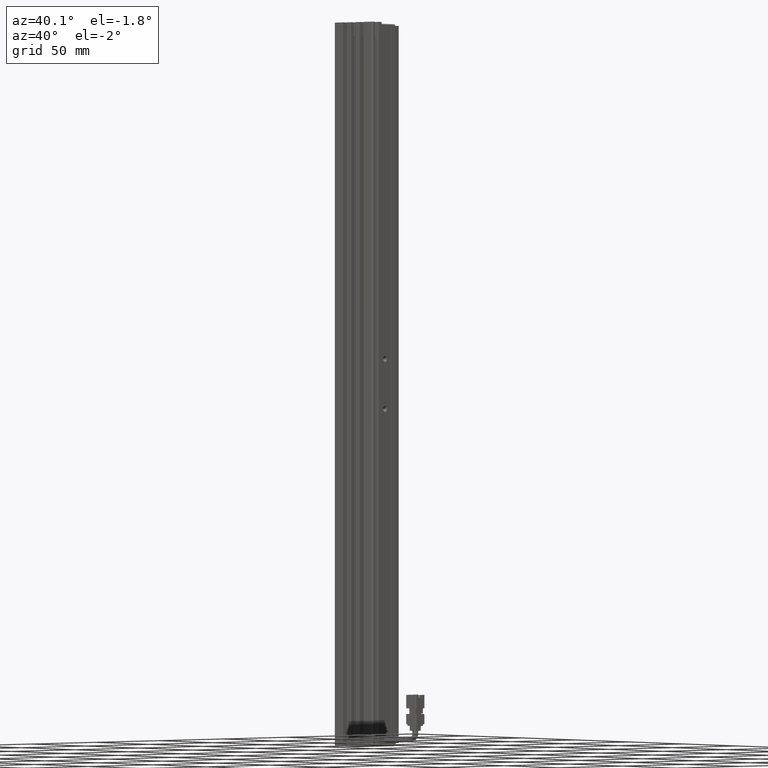
[diagram: clean part render]
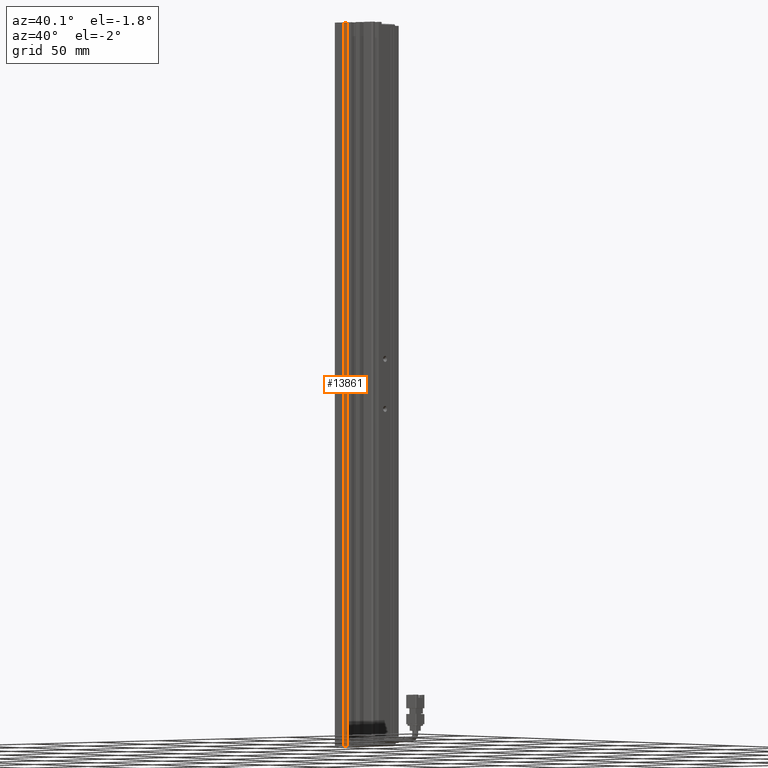
[diagram: same view with one face highlighted and labeled with its STEP entity id]
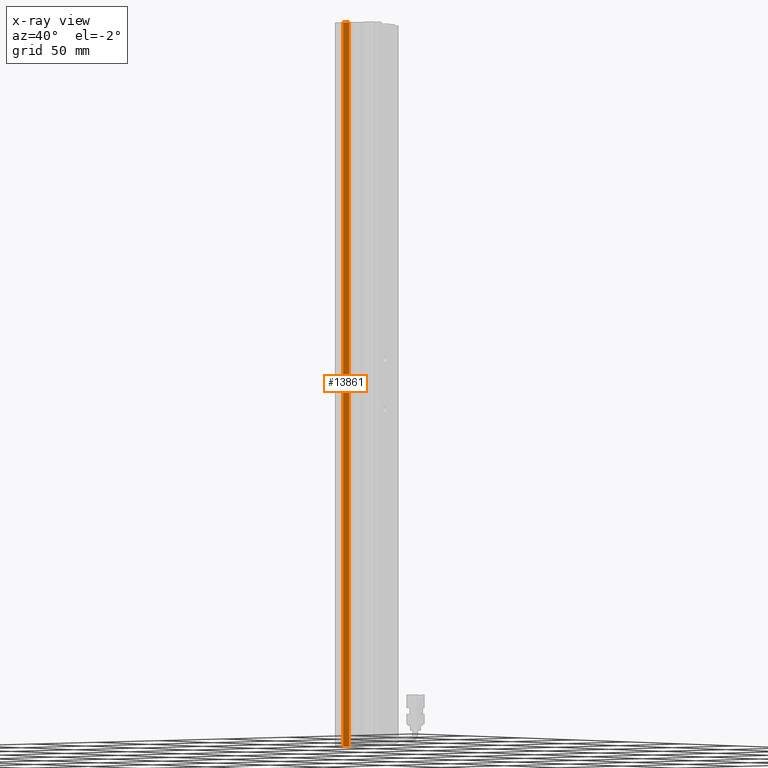
[diagram: x-ray of the same camera — body ghosted, the highlighted face saturated]
A machine part, auxiliary view. The second image highlights one B-rep face of the part: STEP entity #13861.
The next image is the same camera in x-ray: the body ghosted, the highlighted face saturated — about 0% of this face is hidden behind the body in this view.
In plain terms, the highlighted planar face has unit normal (-1, 0, 0).
Its self-contained STEP definition (entity closure, byte-faithful):
#1449 = PLANE ( 'NONE',  #29560 ) ;
#3225 = LINE ( 'NONE', #55368, #34174 ) ;
#4462 = DIRECTION ( 'NONE',  ( 0.0000000000000000000, -0.0000000000000000000, 1.000000000000000000 ) ) ;
#4987 = CARTESIAN_POINT ( 'NONE',  ( 32.92537974683543200, 16.19594479660386500, 102.0000000000000000 ) ) ;
#5941 = LINE ( 'NONE', #77991, #53068 ) ;
#7051 = EDGE_LOOP ( 'NONE', ( #20034, #22109, #64496, #69642 ) ) ;
#7561 = EDGE_CURVE ( 'NONE', #64508, #40821, #25119, .T. ) ;
#9850 = EDGE_CURVE ( 'NONE', #59723, #35837, #31837, .T. ) ;
#11650 = EDGE_CURVE ( 'NONE', #64508, #59723, #3225, .T. ) ;
#13542 = CARTESIAN_POINT ( 'NONE',  ( 32.92537974683543200, 10.69594479660386800, -332.0000000000000000 ) ) ;
#13861 = ADVANCED_FACE ( 'NONE', ( #25345 ), #1449, .F. ) ;
#18412 = DIRECTION ( 'NONE',  ( 0.0000000000000000000, 0.0000000000000000000, 1.000000000000000000 ) ) ;
#20034 = ORIENTED_EDGE ( 'NONE', *, *, #35768, .T. ) ;
#22109 = ORIENTED_EDGE ( 'NONE', *, *, #9850, .F. ) ;
#25119 = LINE ( 'NONE', #32511, #57665 ) ;
#25345 = FACE_OUTER_BOUND ( 'NONE', #7051, .T. ) ;
#26368 = CARTESIAN_POINT ( 'NONE',  ( 32.92537974683543200, 7.083797468354437600, 102.0000000000000000 ) ) ;
#27799 = DIRECTION ( 'NONE',  ( 0.0000000000000000000, 1.000000000000000000, -0.0000000000000000000 ) ) ;
#29560 = AXIS2_PLACEMENT_3D ( 'NONE', #26368, #69183, #32544 ) ;
#31837 = LINE ( 'NONE', #70611, #48084 ) ;
#32511 = CARTESIAN_POINT ( 'NONE',  ( 32.92537974683543200, 7.083797468354437600, -332.0000000000000000 ) ) ;
#32544 = DIRECTION ( 'NONE',  ( 0.0000000000000000000, 0.0000000000000000000, 1.000000000000000000 ) ) ;
#34174 = VECTOR ( 'NONE', #18412, 1000.000000000000000 ) ;
#35768 = EDGE_CURVE ( 'NONE', #40821, #35837, #5941, .T. ) ;
#35837 = VERTEX_POINT ( 'NONE', #4987 ) ;
#38431 = DIRECTION ( 'NONE',  ( 0.0000000000000000000, 1.000000000000000000, -0.0000000000000000000 ) ) ;
#40821 = VERTEX_POINT ( 'NONE', #60822 ) ;
#48084 = VECTOR ( 'NONE', #27799, 1000.000000000000000 ) ;
#53068 = VECTOR ( 'NONE', #4462, 1000.000000000000000 ) ;
#53672 = CARTESIAN_POINT ( 'NONE',  ( 32.92537974683543200, 10.69594479660386800, 102.0000000000000000 ) ) ;
#55368 = CARTESIAN_POINT ( 'NONE',  ( 32.92537974683543200, 10.69594479660386800, 102.0000000000000000 ) ) ;
#57665 = VECTOR ( 'NONE', #38431, 1000.000000000000000 ) ;
#59723 = VERTEX_POINT ( 'NONE', #53672 ) ;
#60822 = CARTESIAN_POINT ( 'NONE',  ( 32.92537974683543200, 16.19594479660386500, -332.0000000000000000 ) ) ;
#64496 = ORIENTED_EDGE ( 'NONE', *, *, #11650, .F. ) ;
#64508 = VERTEX_POINT ( 'NONE', #13542 ) ;
#69183 = DIRECTION ( 'NONE',  ( -1.000000000000000000, 0.0000000000000000000, 0.0000000000000000000 ) ) ;
#69642 = ORIENTED_EDGE ( 'NONE', *, *, #7561, .T. ) ;
#70611 = CARTESIAN_POINT ( 'NONE',  ( 32.92537974683543200, 7.083797468354437600, 102.0000000000000000 ) ) ;
#77991 = CARTESIAN_POINT ( 'NONE',  ( 32.92537974683543200, 16.19594479660386500, 102.0000000000000000 ) ) ;